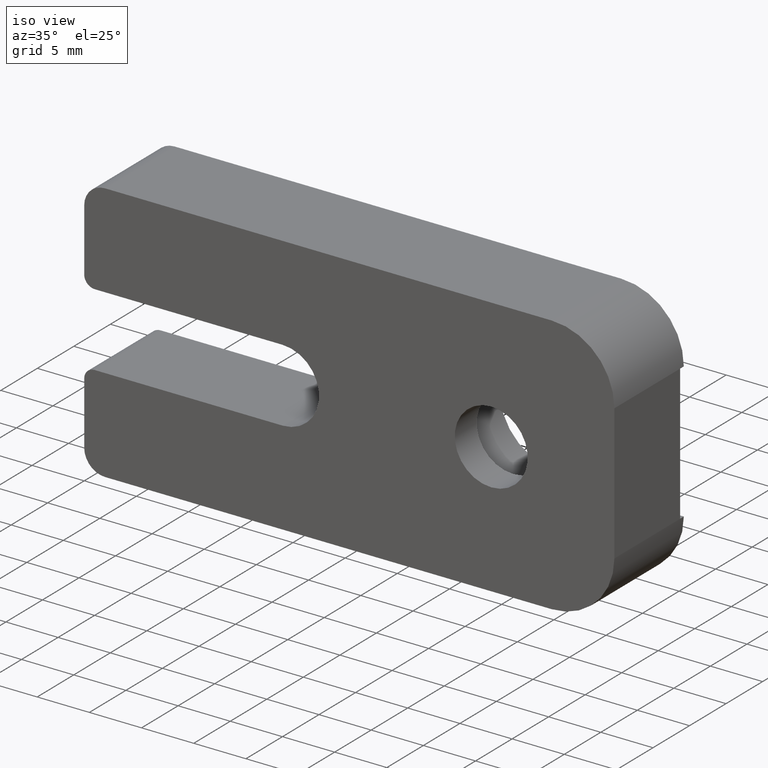
[diagram: clean part render]
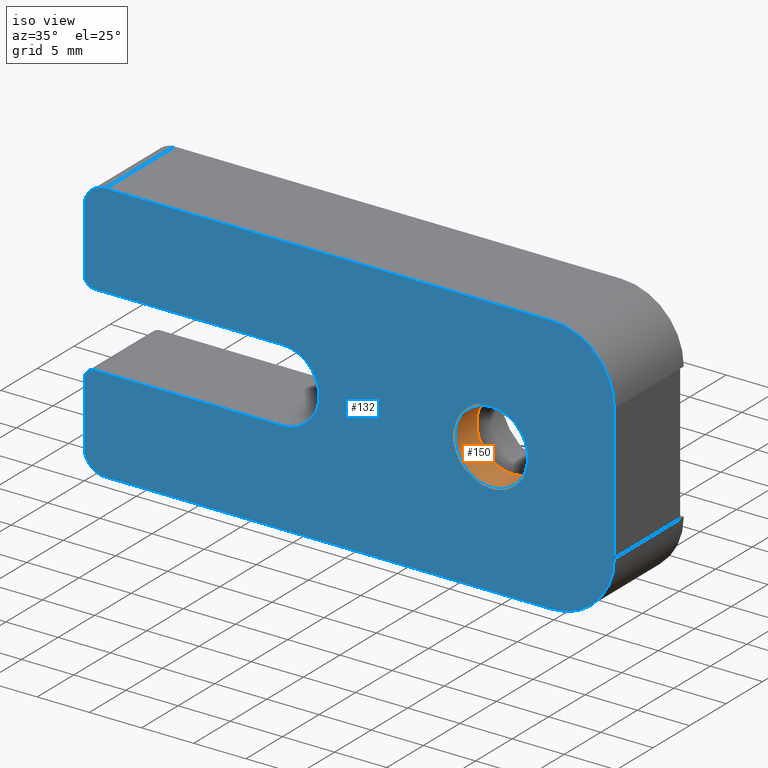
[diagram: same view with the hole feature highlighted: cylindrical wall and planar end face, labeled with their STEP entity ids]
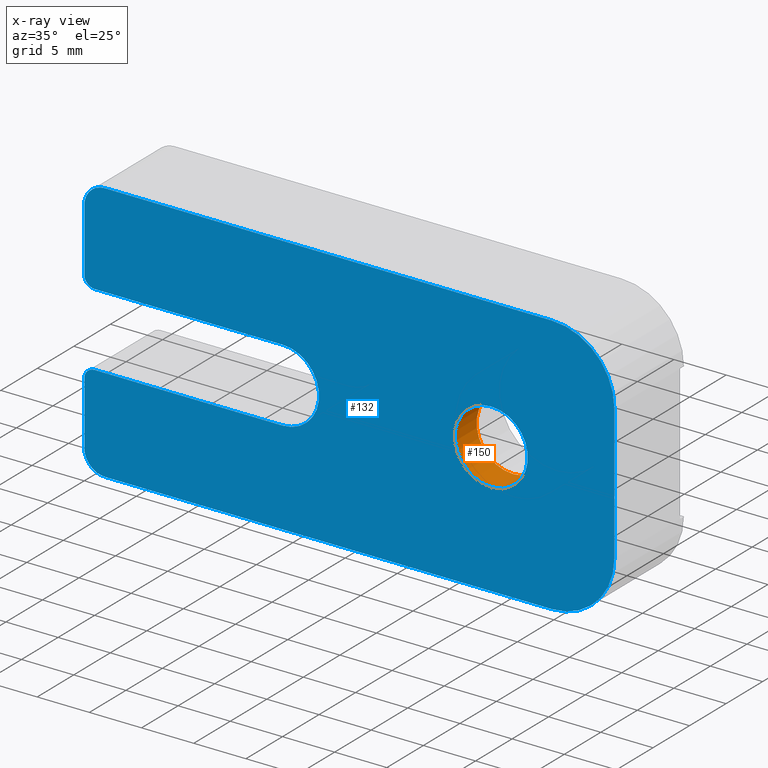
[diagram: x-ray of the same camera — body ghosted, the hole faces saturated]
A machine part, iso view. The highlighted faces form one hole feature of diameter 7 mm: the cylindrical wall (entity #150, orange) and its adjacent planar end face (entity #132, blue) — they share a circular edge in the B-rep.
The next image is the same camera in x-ray (body ghosted, the hole faces saturated) — the bore reads through the body.
Wall:
#17 = EDGE_CURVE ( 'NONE', #530, #530, #645, .T. ) ;
#33 = EDGE_CURVE ( 'NONE', #525, #525, #621, .T. ) ;
#34 = AXIS2_PLACEMENT_3D ( 'NONE', #111, #93, #124 ) ;
#63 = AXIS2_PLACEMENT_3D ( 'NONE', #125, #99, #351 ) ;
#93 = DIRECTION ( 'NONE',  ( 0.0000000000000000000, 1.000000000000000000, 0.0000000000000000000 ) ) ;
#99 = DIRECTION ( 'NONE',  ( -0.0000000000000000000, -1.000000000000000000, -0.0000000000000000000 ) ) ;
#111 = CARTESIAN_POINT ( 'NONE',  ( 38.99999999999999300, 0.0000000000000000000, -12.50000000000000400 ) ) ;
#124 = DIRECTION ( 'NONE',  ( 0.0000000000000000000, 0.0000000000000000000, 1.000000000000000000 ) ) ;
#125 = CARTESIAN_POINT ( 'NONE',  ( 38.99999999999999300, 2.999999999999999100, -12.50000000000000400 ) ) ;
#150 = ADVANCED_FACE ( 'NONE', ( #538, #532 ), #531, .F. ) ;
#199 = CARTESIAN_POINT ( 'NONE',  ( 38.99999999999999300, 2.999999999999999100, -9.000000000000005300 ) ) ;
#200 = CARTESIAN_POINT ( 'NONE',  ( 38.99999999999999300, 0.0000000000000000000, -9.000000000000005300 ) ) ;
#229 = ORIENTED_EDGE ( 'NONE', *, *, #17, .F. ) ;
#232 = EDGE_LOOP ( 'NONE', ( #237 ) ) ;
#237 = ORIENTED_EDGE ( 'NONE', *, *, #33, .F. ) ;
#245 = CARTESIAN_POINT ( 'NONE',  ( 38.99999999999999300, 0.0000000000000000000, -12.50000000000000400 ) ) ;
#247 = DIRECTION ( 'NONE',  ( -0.0000000000000000000, 1.000000000000000000, -0.0000000000000000000 ) ) ;
#249 = DIRECTION ( 'NONE',  ( 0.0000000000000000000, 0.0000000000000000000, 1.000000000000000000 ) ) ;
#329 = EDGE_LOOP ( 'NONE', ( #229 ) ) ;
#351 = DIRECTION ( 'NONE',  ( 0.0000000000000000000, 0.0000000000000000000, 1.000000000000000000 ) ) ;
#525 = VERTEX_POINT ( 'NONE', #199 ) ;
#530 = VERTEX_POINT ( 'NONE', #200 ) ;
#531 = CYLINDRICAL_SURFACE ( 'NONE', #735, 3.499999999999999600 ) ;
#532 = FACE_OUTER_BOUND ( 'NONE', #232, .T. ) ;
#538 = FACE_OUTER_BOUND ( 'NONE', #329, .T. ) ;
#621 = CIRCLE ( 'NONE', #63, 3.499999999999999600 ) ;
#645 = CIRCLE ( 'NONE', #34, 3.499999999999999600 ) ;
#735 = AXIS2_PLACEMENT_3D ( 'NONE', #245, #247, #249 ) ;
End face:
#9 = EDGE_CURVE ( 'NONE', #704, #708, #653, .T. ) ;
#14 = AXIS2_PLACEMENT_3D ( 'NONE', #378, #420, #415 ) ;
#15 = AXIS2_PLACEMENT_3D ( 'NONE', #122, #80, #79 ) ;
#16 = EDGE_CURVE ( 'NONE', #688, #699, #643, .T. ) ;
#17 = EDGE_CURVE ( 'NONE', #530, #530, #645, .T. ) ;
#18 = EDGE_CURVE ( 'NONE', #717, #718, #639, .T. ) ;
#19 = EDGE_CURVE ( 'NONE', #700, #701, #642, .T. ) ;
#20 = EDGE_CURVE ( 'NONE', #702, #699, #640, .T. ) ;
#21 = EDGE_CURVE ( 'NONE', #700, #703, #636, .T. ) ;
#27 = EDGE_CURVE ( 'NONE', #718, #716, #627, .T. ) ;
#30 = AXIS2_PLACEMENT_3D ( 'NONE', #87, #112, #83 ) ;
#34 = AXIS2_PLACEMENT_3D ( 'NONE', #111, #93, #124 ) ;
#35 = AXIS2_PLACEMENT_3D ( 'NONE', #414, #441, #384 ) ;
#37 = AXIS2_PLACEMENT_3D ( 'NONE', #416, #365, #422 ) ;
#41 = EDGE_CURVE ( 'NONE', #716, #719, #612, .T. ) ;
#42 = AXIS2_PLACEMENT_3D ( 'NONE', #95, #100, #103 ) ;
#47 = EDGE_CURVE ( 'NONE', #702, #703, #604, .T. ) ;
#50 = AXIS2_PLACEMENT_3D ( 'NONE', #408, #434, #373 ) ;
#55 = EDGE_CURVE ( 'NONE', #695, #697, #619, .T. ) ;
#58 = EDGE_CURVE ( 'NONE', #717, #708, #592, .T. ) ;
#59 = EDGE_CURVE ( 'NONE', #688, #697, #590, .T. ) ;
#64 = EDGE_CURVE ( 'NONE', #704, #701, #585, .T. ) ;
#66 = EDGE_CURVE ( 'NONE', #695, #719, #581, .T. ) ;
#78 = CARTESIAN_POINT ( 'NONE',  ( 0.0000000000000000000, 0.0000000000000000000, 0.0000000000000000000 ) ) ;
#79 = DIRECTION ( 'NONE',  ( 0.0000000000000000000, 0.0000000000000000000, 1.000000000000000000 ) ) ;
#80 = DIRECTION ( 'NONE',  ( -0.0000000000000000000, -1.000000000000000000, -0.0000000000000000000 ) ) ;
#83 = DIRECTION ( 'NONE',  ( 1.156482317317871300E-015, 0.0000000000000000000, 1.000000000000000000 ) ) ;
#84 = DIRECTION ( 'NONE',  ( 1.541976423090494400E-015, -0.0000000000000000000, 1.000000000000000000 ) ) ;
#87 = CARTESIAN_POINT ( 'NONE',  ( 44.79999999999998300, 0.0000000000000000000, -19.00000000000000400 ) ) ;
#91 = DIRECTION ( 'NONE',  ( 1.000000000000000000, 0.0000000000000000000, 0.0000000000000000000 ) ) ;
#93 = DIRECTION ( 'NONE',  ( 0.0000000000000000000, 1.000000000000000000, 0.0000000000000000000 ) ) ;
#95 = CARTESIAN_POINT ( 'NONE',  ( 44.79999999999999700, 0.0000000000000000000, -6.000000000000000000 ) ) ;
#96 = CARTESIAN_POINT ( 'NONE',  ( 18.99999999999999600, 0.0000000000000000000, -16.00000000000000000 ) ) ;
#100 = DIRECTION ( 'NONE',  ( -0.0000000000000000000, -1.000000000000000000, -0.0000000000000000000 ) ) ;
#102 = CARTESIAN_POINT ( 'NONE',  ( -1.387778780781445700E-014, 0.0000000000000000000, -25.00000000000000000 ) ) ;
#103 = DIRECTION ( 'NONE',  ( -1.156482317317871300E-015, 0.0000000000000000000, 1.000000000000000000 ) ) ;
#107 = DIRECTION ( 'NONE',  ( 1.000000000000000000, -0.0000000000000000000, -1.826024711554534200E-016 ) ) ;
#111 = CARTESIAN_POINT ( 'NONE',  ( 38.99999999999999300, 0.0000000000000000000, -12.50000000000000400 ) ) ;
#112 = DIRECTION ( 'NONE',  ( -0.0000000000000000000, -1.000000000000000000, -0.0000000000000000000 ) ) ;
#115 = CARTESIAN_POINT ( 'NONE',  ( 0.0000000000000000000, 0.0000000000000000000, -15.99999999999999600 ) ) ;
#121 = DIRECTION ( 'NONE',  ( -1.000000000000000000, -0.0000000000000000000, -0.0000000000000000000 ) ) ;
#122 = CARTESIAN_POINT ( 'NONE',  ( 18.99999999999999600, 0.0000000000000000000, -12.50000000000000000 ) ) ;
#124 = DIRECTION ( 'NONE',  ( 0.0000000000000000000, 0.0000000000000000000, 1.000000000000000000 ) ) ;
#132 = ADVANCED_FACE ( 'NONE', ( #562, #597 ), #443, .F. ) ;
#167 = CARTESIAN_POINT ( 'NONE',  ( 0.0000000000000000000, 0.0000000000000000000, -7.999999999999998200 ) ) ;
#168 = CARTESIAN_POINT ( 'NONE',  ( 2.000000000000000000, 0.0000000000000000000, 0.0000000000000000000 ) ) ;
#174 = CARTESIAN_POINT ( 'NONE',  ( 0.0000000000000000000, 0.0000000000000000000, -2.000000000000000000 ) ) ;
#176 = CARTESIAN_POINT ( 'NONE',  ( 44.79999999999999700, 0.0000000000000000000, 0.0000000000000000000 ) ) ;
#177 = CARTESIAN_POINT ( 'NONE',  ( 44.79999999999998300, 0.0000000000000000000, -25.00000000000000000 ) ) ;
#178 = CARTESIAN_POINT ( 'NONE',  ( 1.999999999999989100, 0.0000000000000000000, -25.00000000000000000 ) ) ;
#179 = CARTESIAN_POINT ( 'NONE',  ( 50.79999999999999700, 0.0000000000000000000, -6.000000000000003600 ) ) ;
#180 = CARTESIAN_POINT ( 'NONE',  ( 50.79999999999998300, 0.0000000000000000000, -19.00000000000000700 ) ) ;
#181 = CARTESIAN_POINT ( 'NONE',  ( -1.079383496163346100E-014, 0.0000000000000000000, -22.99999999999999600 ) ) ;
#185 = CARTESIAN_POINT ( 'NONE',  ( -1.541976423090495800E-015, 0.0000000000000000000, -16.99999999999999600 ) ) ;
#193 = CARTESIAN_POINT ( 'NONE',  ( 18.99999999999999600, 0.0000000000000000000, -9.000000000000001800 ) ) ;
#194 = CARTESIAN_POINT ( 'NONE',  ( 1.000000000000000900, 0.0000000000000000000, -15.99999999999999600 ) ) ;
#195 = CARTESIAN_POINT ( 'NONE',  ( 18.99999999999999600, 0.0000000000000000000, -16.00000000000000000 ) ) ;
#196 = CARTESIAN_POINT ( 'NONE',  ( 1.000000000000000900, 0.0000000000000000000, -8.999999999999998200 ) ) ;
#200 = CARTESIAN_POINT ( 'NONE',  ( 38.99999999999999300, 0.0000000000000000000, -9.000000000000005300 ) ) ;
#293 = ORIENTED_EDGE ( 'NONE', *, *, #59, .T. ) ;
#294 = ORIENTED_EDGE ( 'NONE', *, *, #16, .F. ) ;
#295 = ORIENTED_EDGE ( 'NONE', *, *, #20, .T. ) ;
#296 = ORIENTED_EDGE ( 'NONE', *, *, #47, .F. ) ;
#297 = ORIENTED_EDGE ( 'NONE', *, *, #21, .T. ) ;
#298 = ORIENTED_EDGE ( 'NONE', *, *, #19, .F. ) ;
#299 = ORIENTED_EDGE ( 'NONE', *, *, #64, .T. ) ;
#300 = ORIENTED_EDGE ( 'NONE', *, *, #9, .F. ) ;
#301 = ORIENTED_EDGE ( 'NONE', *, *, #58, .T. ) ;
#302 = ORIENTED_EDGE ( 'NONE', *, *, #18, .F. ) ;
#307 = ORIENTED_EDGE ( 'NONE', *, *, #27, .F. ) ;
#308 = ORIENTED_EDGE ( 'NONE', *, *, #41, .F. ) ;
#309 = ORIENTED_EDGE ( 'NONE', *, *, #66, .T. ) ;
#310 = ORIENTED_EDGE ( 'NONE', *, *, #55, .F. ) ;
#311 = ORIENTED_EDGE ( 'NONE', *, *, #17, .T. ) ;
#340 = EDGE_LOOP ( 'NONE', ( #311 ) ) ;
#349 = EDGE_LOOP ( 'NONE', ( #310, #309, #308, #307, #302, #301, #300, #299, #298, #297, #296, #295, #294, #293 ) ) ;
#359 = DIRECTION ( 'NONE',  ( 0.0000000000000000000, -0.0000000000000000000, 1.000000000000000000 ) ) ;
#361 = DIRECTION ( 'NONE',  ( 0.0000000000000000000, 1.000000000000000000, 0.0000000000000000000 ) ) ;
#365 = DIRECTION ( 'NONE',  ( -0.0000000000000000000, -1.000000000000000000, -0.0000000000000000000 ) ) ;
#373 = DIRECTION ( 'NONE',  ( 0.0000000000000000000, 0.0000000000000000000, 1.000000000000000000 ) ) ;
#378 = CARTESIAN_POINT ( 'NONE',  ( 1.000000000000000000, 0.0000000000000000000, -7.999999999999998200 ) ) ;
#384 = DIRECTION ( 'NONE',  ( 0.0000000000000000000, 0.0000000000000000000, 1.000000000000000000 ) ) ;
#408 = CARTESIAN_POINT ( 'NONE',  ( 1.999999999999989100, 0.0000000000000000000, -23.00000000000000000 ) ) ;
#409 = DIRECTION ( 'NONE',  ( -0.0000000000000000000, -0.0000000000000000000, 1.000000000000000000 ) ) ;
#412 = DIRECTION ( 'NONE',  ( -1.000000000000000000, 0.0000000000000000000, 9.130123557772670800E-017 ) ) ;
#414 = CARTESIAN_POINT ( 'NONE',  ( 1.000000000000000900, 0.0000000000000000000, -16.99999999999999600 ) ) ;
#415 = DIRECTION ( 'NONE',  ( 0.0000000000000000000, 0.0000000000000000000, 1.000000000000000000 ) ) ;
#416 = CARTESIAN_POINT ( 'NONE',  ( 2.000000000000000000, 0.0000000000000000000, -2.000000000000000000 ) ) ;
#417 = CARTESIAN_POINT ( 'NONE',  ( 0.0000000000000000000, 0.0000000000000000000, 0.0000000000000000000 ) ) ;
#419 = CARTESIAN_POINT ( 'NONE',  ( 50.79999999999999700, 0.0000000000000000000, 0.0000000000000000000 ) ) ;
#420 = DIRECTION ( 'NONE',  ( -0.0000000000000000000, -1.000000000000000000, -0.0000000000000000000 ) ) ;
#421 = CARTESIAN_POINT ( 'NONE',  ( 18.99999999999999600, 0.0000000000000000000, -9.000000000000000000 ) ) ;
#422 = DIRECTION ( 'NONE',  ( 0.0000000000000000000, 0.0000000000000000000, 1.000000000000000000 ) ) ;
#430 = CARTESIAN_POINT ( 'NONE',  ( 18.99999999999999600, 0.0000000000000000000, -12.50000000000000000 ) ) ;
#434 = DIRECTION ( 'NONE',  ( -0.0000000000000000000, -1.000000000000000000, -0.0000000000000000000 ) ) ;
#437 = DIRECTION ( 'NONE',  ( -5.551115123125782700E-016, 0.0000000000000000000, -1.000000000000000000 ) ) ;
#441 = DIRECTION ( 'NONE',  ( -0.0000000000000000000, -1.000000000000000000, -0.0000000000000000000 ) ) ;
#443 = PLANE ( 'NONE',  #750 ) ;
#530 = VERTEX_POINT ( 'NONE', #200 ) ;
#562 = FACE_BOUND ( 'NONE', #340, .T. ) ;
#581 = CIRCLE ( 'NONE', #14, 1.000000000000000000 ) ;
#585 = CIRCLE ( 'NONE', #50, 2.000000000000001800 ) ;
#590 = CIRCLE ( 'NONE', #37, 2.000000000000000000 ) ;
#592 = CIRCLE ( 'NONE', #35, 1.000000000000000900 ) ;
#595 = VECTOR ( 'NONE', #409, 1000.000000000000000 ) ;
#597 = FACE_OUTER_BOUND ( 'NONE', #349, .T. ) ;
#601 = VECTOR ( 'NONE', #437, 1000.000000000000000 ) ;
#604 = LINE ( 'NONE', #419, #601 ) ;
#609 = VECTOR ( 'NONE', #412, 1000.000000000000000 ) ;
#612 = LINE ( 'NONE', #421, #609 ) ;
#619 = LINE ( 'NONE', #417, #595 ) ;
#627 = CIRCLE ( 'NONE', #15, 3.499999999999999600 ) ;
#636 = CIRCLE ( 'NONE', #30, 6.000000000000000000 ) ;
#637 = VECTOR ( 'NONE', #107, 1000.000000000000000 ) ;
#638 = VECTOR ( 'NONE', #121, 1000.000000000000000 ) ;
#639 = LINE ( 'NONE', #96, #637 ) ;
#640 = CIRCLE ( 'NONE', #42, 6.000000000000000000 ) ;
#641 = VECTOR ( 'NONE', #91, 1000.000000000000000 ) ;
#642 = LINE ( 'NONE', #102, #638 ) ;
#643 = LINE ( 'NONE', #78, #641 ) ;
#645 = CIRCLE ( 'NONE', #34, 3.499999999999999600 ) ;
#648 = VECTOR ( 'NONE', #84, 1000.000000000000000 ) ;
#653 = LINE ( 'NONE', #115, #648 ) ;
#688 = VERTEX_POINT ( 'NONE', #168 ) ;
#695 = VERTEX_POINT ( 'NONE', #167 ) ;
#697 = VERTEX_POINT ( 'NONE', #174 ) ;
#699 = VERTEX_POINT ( 'NONE', #176 ) ;
#700 = VERTEX_POINT ( 'NONE', #177 ) ;
#701 = VERTEX_POINT ( 'NONE', #178 ) ;
#702 = VERTEX_POINT ( 'NONE', #179 ) ;
#703 = VERTEX_POINT ( 'NONE', #180 ) ;
#704 = VERTEX_POINT ( 'NONE', #181 ) ;
#708 = VERTEX_POINT ( 'NONE', #185 ) ;
#716 = VERTEX_POINT ( 'NONE', #193 ) ;
#717 = VERTEX_POINT ( 'NONE', #194 ) ;
#718 = VERTEX_POINT ( 'NONE', #195 ) ;
#719 = VERTEX_POINT ( 'NONE', #196 ) ;
#750 = AXIS2_PLACEMENT_3D ( 'NONE', #430, #361, #359 ) ;